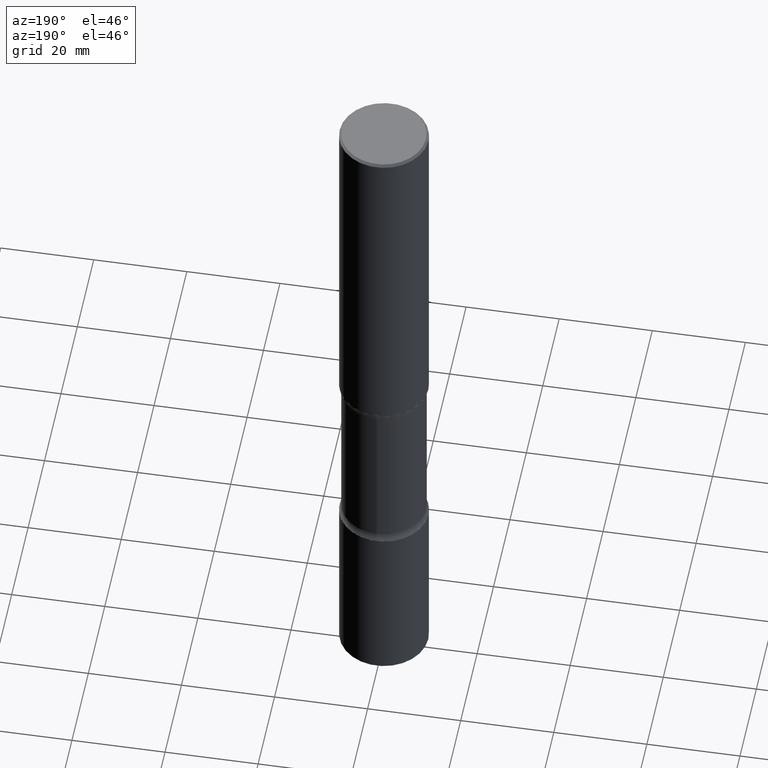
[diagram: clean part render]
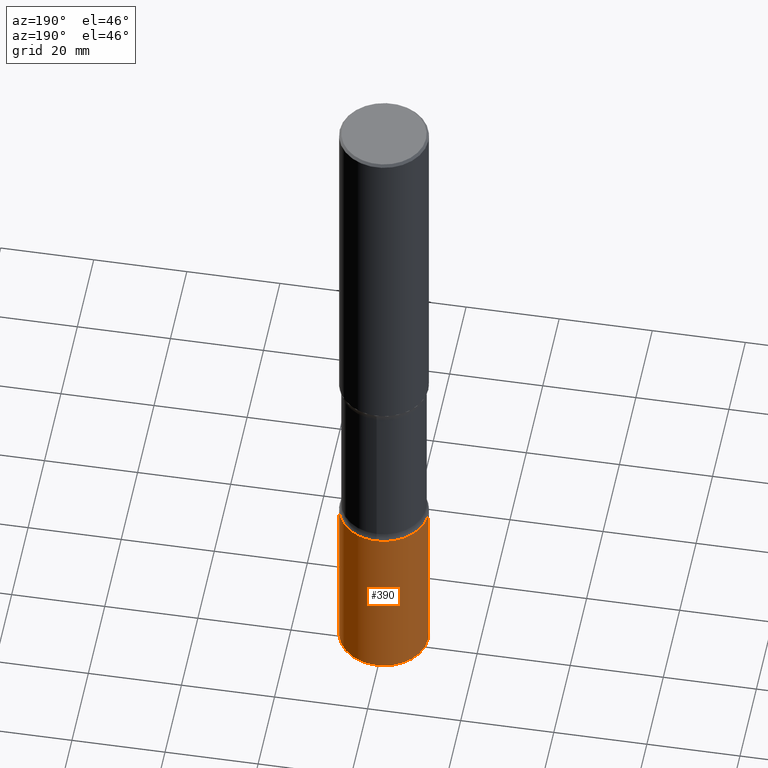
[diagram: same view with one face highlighted and labeled with its STEP entity id]
A machine part, auxiliary view. The second image highlights one B-rep face of the part: STEP entity #390.
In plain terms, the highlighted cylindrical surface (partial cylindrical patch) has radius 9.525 mm, axis along (-0, 0, 1).
Its self-contained STEP definition (entity closure, byte-faithful):
#19 = VERTEX_POINT ( 'NONE', #275 ) ;
#21 = CARTESIAN_POINT ( 'NONE',  ( -0.3750000000000003886, -1.564828436313191776E-14, -4.499999999999999112 ) ) ;
#27 = ORIENTED_EDGE ( 'NONE', *, *, #39, .T. ) ;
#35 = CYLINDRICAL_SURFACE ( 'NONE', #323, 0.3750000000000003886 ) ;
#37 = LINE ( 'NONE', #67, #48 ) ;
#39 = EDGE_CURVE ( 'NONE', #382, #310, #102, .T. ) ;
#48 = VECTOR ( 'NONE', #377, 39.37007874015748143 ) ;
#54 = CIRCLE ( 'NONE', #479, 0.3750000000000003886 ) ;
#67 = CARTESIAN_POINT ( 'NONE',  ( 0.3750000000000003886, -2.618611004132352383E-15, 1.828566290923477884E-29 ) ) ;
#102 = LINE ( 'NONE', #356, #187 ) ;
#138 = CIRCLE ( 'NONE', #145, 0.3750000000000002776 ) ;
#143 = DIRECTION ( 'NONE',  ( -2.445468806185136877E-29, 3.491481338843145188E-15, 1.000000000000000000 ) ) ;
#145 = AXIS2_PLACEMENT_3D ( 'NONE', #521, #438, #354 ) ;
#150 = CARTESIAN_POINT ( 'NONE',  ( 0.3750000000000006661, -2.353258422380279265E-14, -5.989999999999999325 ) ) ;
#164 = EDGE_LOOP ( 'NONE', ( #512, #27, #176, #292 ) ) ;
#176 = ORIENTED_EDGE ( 'NONE', *, *, #441, .F. ) ;
#187 = VECTOR ( 'NONE', #143, 39.37007874015748143 ) ;
#251 = VERTEX_POINT ( 'NONE', #150 ) ;
#267 = DIRECTION ( 'NONE',  ( 1.000000000000000000, -6.982962677686265922E-15, 0.000000000000000000 ) ) ;
#275 = CARTESIAN_POINT ( 'NONE',  ( 0.3750000000000003886, -1.833027702892650691E-14, -4.499999999999999112 ) ) ;
#292 = ORIENTED_EDGE ( 'NONE', *, *, #415, .F. ) ;
#310 = VERTEX_POINT ( 'NONE', #21 ) ;
#323 = AXIS2_PLACEMENT_3D ( 'NONE', #497, #374, #330 ) ;
#330 = DIRECTION ( 'NONE',  ( 1.000000000000000000, -6.982962677686265922E-15, 4.876176775795935793E-29 ) ) ;
#354 = DIRECTION ( 'NONE',  ( 1.000000000000000000, -6.982962677686267499E-15, 0.000000000000000000 ) ) ;
#356 = CARTESIAN_POINT ( 'NONE',  ( -0.3750000000000003886, 2.664535259100378458E-15, -1.844600658845591560E-29 ) ) ;
#374 = DIRECTION ( 'NONE',  ( -2.445468806185136597E-29, 3.491481338843145583E-15, 1.000000000000000000 ) ) ;
#377 = DIRECTION ( 'NONE',  ( -2.445468806185136877E-29, 3.491481338843145188E-15, 1.000000000000000000 ) ) ;
#382 = VERTEX_POINT ( 'NONE', #463 ) ;
#390 = ADVANCED_FACE ( 'NONE', ( #548 ), #35, .T. ) ;
#415 = EDGE_CURVE ( 'NONE', #251, #19, #37, .T. ) ;
#429 = DIRECTION ( 'NONE',  ( -2.445468806185136597E-29, 3.491481338843145583E-15, 1.000000000000000000 ) ) ;
#438 = DIRECTION ( 'NONE',  ( -2.445468806185136597E-29, 3.491481338843145583E-15, 1.000000000000000000 ) ) ;
#441 = EDGE_CURVE ( 'NONE', #19, #310, #54, .T. ) ;
#448 = EDGE_CURVE ( 'NONE', #251, #382, #138, .T. ) ;
#463 = CARTESIAN_POINT ( 'NONE',  ( -0.3750000000000006661, -1.824943796057005747E-14, -5.989999999999999325 ) ) ;
#479 = AXIS2_PLACEMENT_3D ( 'NONE', #506, #429, #267 ) ;
#497 = CARTESIAN_POINT ( 'NONE',  ( 0.000000000000000000, 0.000000000000000000, 0.000000000000000000 ) ) ;
#506 = CARTESIAN_POINT ( 'NONE',  ( 1.100460962783311244E-28, -1.571166602479415374E-14, -4.499999999999999112 ) ) ;
#512 = ORIENTED_EDGE ( 'NONE', *, *, #448, .T. ) ;
#521 = CARTESIAN_POINT ( 'NONE',  ( 1.464835814904896579E-28, -2.091397321967043948E-14, -5.989999999999999325 ) ) ;
#548 = FACE_OUTER_BOUND ( 'NONE', #164, .T. ) ;